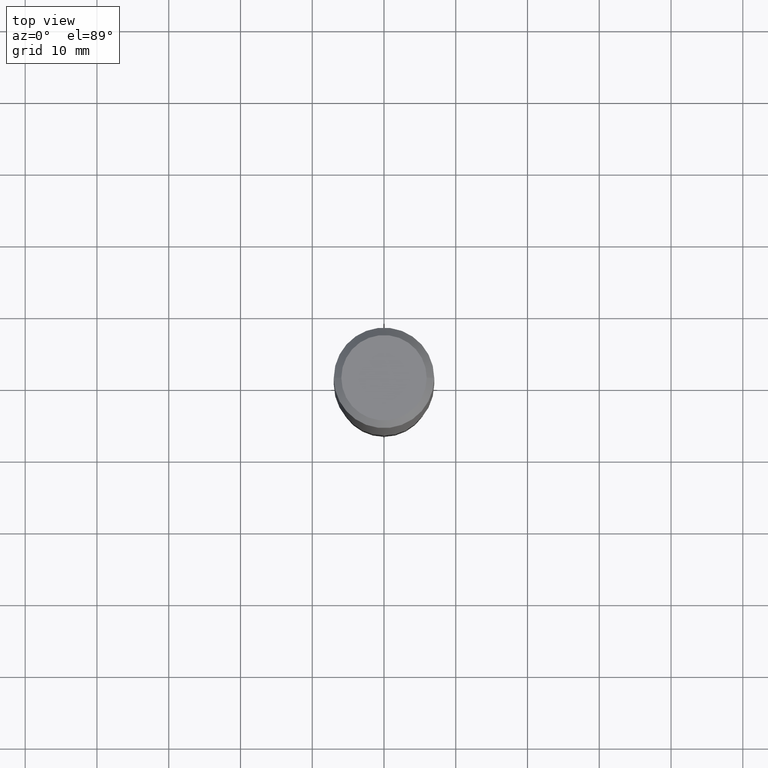
[diagram: clean part render]
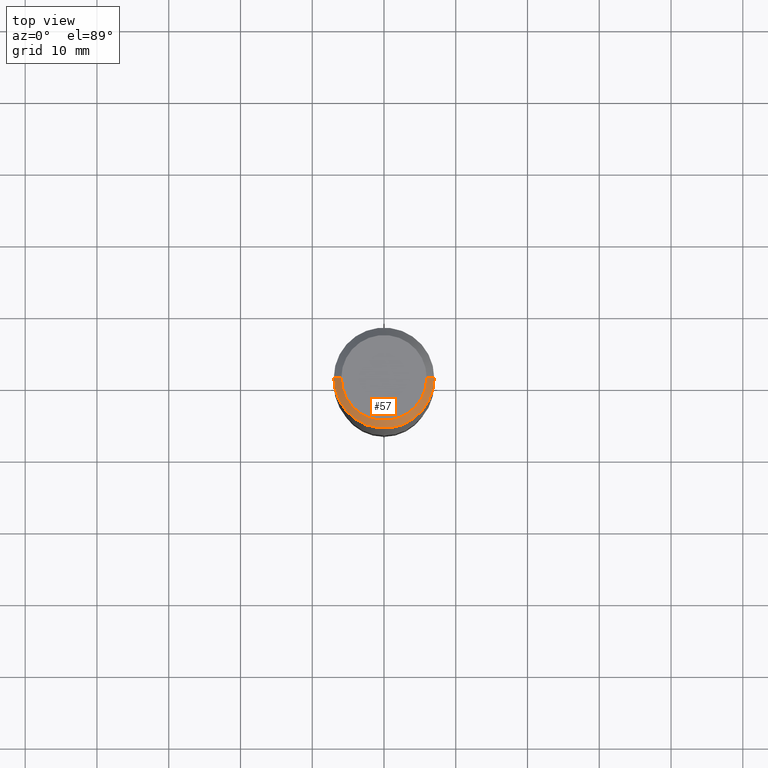
[diagram: same view with one face highlighted and labeled with its STEP entity id]
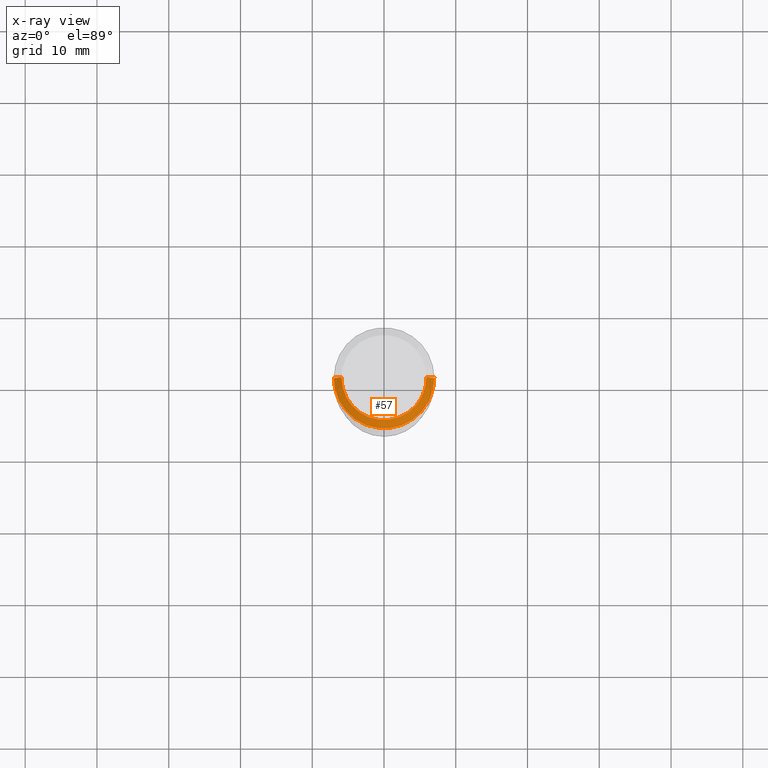
[diagram: x-ray of the same camera — body ghosted, the highlighted face saturated]
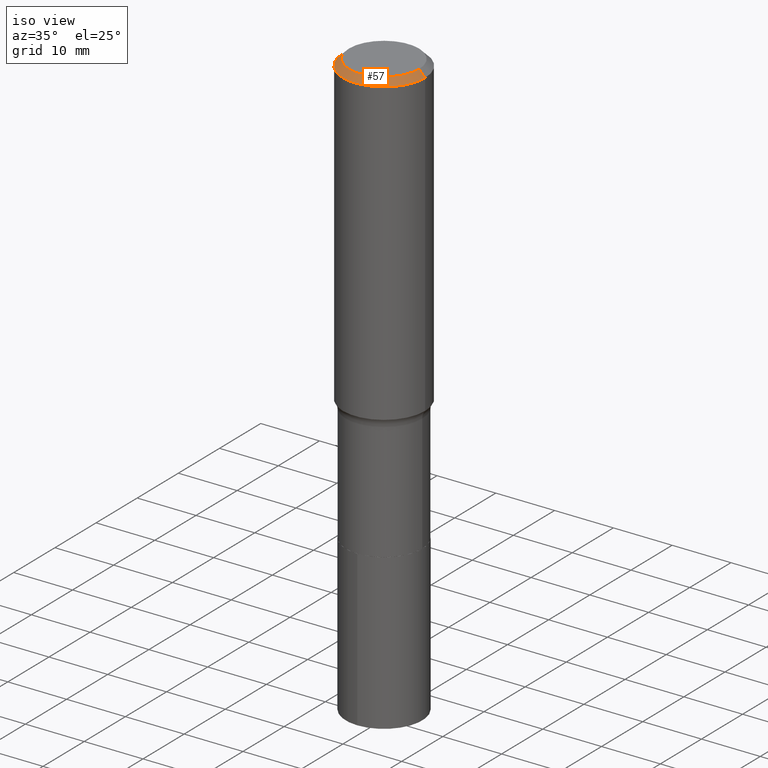
[diagram: same view with one face highlighted and labeled with its STEP entity id]
A machine part, top view. The second image highlights one B-rep face of the part: STEP entity #57.
The next image is the same camera in x-ray: the body ghosted, the highlighted face saturated — about 0% of this face is hidden behind the body in this view.
A second angle (iso view) of the same face is appended — the face is thin or edge-on in the first view.
In plain terms, the highlighted conical surface has half-angle 45 deg.
Its self-contained STEP definition (entity closure, byte-faithful):
#14 = CARTESIAN_POINT ( 'NONE',  ( -0.2756000000000000116, -1.705996447411659768E-15, -0.04134000000000027930 ) ) ;
#35 = ORIENTED_EDGE ( 'NONE', *, *, #92, .F. ) ;
#57 = ADVANCED_FACE ( 'NONE', ( #86 ), #186, .T. ) ;
#59 = LINE ( 'NONE', #456, #254 ) ;
#86 = FACE_OUTER_BOUND ( 'NONE', #396, .T. ) ;
#92 = EDGE_CURVE ( 'NONE', #402, #203, #409, .T. ) ;
#122 = CARTESIAN_POINT ( 'NONE',  ( 1.010956804476942398E-30, -1.443378385477766056E-16, -0.04134000000000027930 ) ) ;
#125 = DIRECTION ( 'NONE',  ( 2.445468806185136597E-29, -3.491481338843145583E-15, -1.000000000000000000 ) ) ;
#135 = CARTESIAN_POINT ( 'NONE',  ( 0.2342600000000000238, -1.821115673845785155E-15, 4.101342130356573868E-18 ) ) ;
#144 = ORIENTED_EDGE ( 'NONE', *, *, #437, .F. ) ;
#164 = DIRECTION ( 'NONE',  ( -1.000000000000000000, 6.982962677686267499E-15, 0.000000000000000000 ) ) ;
#169 = CARTESIAN_POINT ( 'NONE',  ( 0.2756000000000000116, -2.035091086733610886E-15, -0.04134000000000027930 ) ) ;
#181 = EDGE_CURVE ( 'NONE', #402, #265, #59, .T. ) ;
#186 = CONICAL_SURFACE ( 'NONE', #450, 0.2756000000000000116, 0.7853981633974449483 ) ;
#191 = VERTEX_POINT ( 'NONE', #382 ) ;
#193 = DIRECTION ( 'NONE',  ( -2.445468806185136597E-29, 3.491481338843145583E-15, 1.000000000000000000 ) ) ;
#203 = VERTEX_POINT ( 'NONE', #135 ) ;
#216 = CIRCLE ( 'NONE', #356, 0.2756000000000000116 ) ;
#236 = DIRECTION ( 'NONE',  ( -0.7071067811865451302, 2.468850131082231817E-15, -0.7071067811865499042 ) ) ;
#240 = CARTESIAN_POINT ( 'NONE',  ( -0.2342600000000000238, 1.707997756148671759E-15, 4.101342130332794026E-18 ) ) ;
#254 = VECTOR ( 'NONE', #236, 39.37007874015748143 ) ;
#265 = VERTEX_POINT ( 'NONE', #14 ) ;
#272 = VECTOR ( 'NONE', #452, 39.37007874015748143 ) ;
#292 = EDGE_CURVE ( 'NONE', #265, #191, #216, .T. ) ;
#295 = DIRECTION ( 'NONE',  ( 1.000000000000000000, -6.982962677686267499E-15, 0.000000000000000000 ) ) ;
#301 = CARTESIAN_POINT ( 'NONE',  ( -1.002970424325033577E-46, 1.431975951230896486E-32, 4.101342130344485961E-18 ) ) ;
#305 = CARTESIAN_POINT ( 'NONE',  ( 1.010956804476942398E-30, -1.443378385477766056E-16, -0.04134000000000027930 ) ) ;
#324 = ORIENTED_EDGE ( 'NONE', *, *, #292, .T. ) ;
#325 = ORIENTED_EDGE ( 'NONE', *, *, #181, .T. ) ;
#341 = LINE ( 'NONE', #169, #272 ) ;
#356 = AXIS2_PLACEMENT_3D ( 'NONE', #122, #193, #295 ) ;
#375 = DIRECTION ( 'NONE',  ( 1.000000000000000000, -6.982962677686267499E-15, 4.876157962347795834E-29 ) ) ;
#378 = DIRECTION ( 'NONE',  ( -2.445468806185136597E-29, 3.491481338843145583E-15, 1.000000000000000000 ) ) ;
#382 = CARTESIAN_POINT ( 'NONE',  ( 0.2756000000000000116, -2.068842352518111732E-15, -0.04134000000000027930 ) ) ;
#396 = EDGE_LOOP ( 'NONE', ( #144, #35, #325, #324 ) ) ;
#402 = VERTEX_POINT ( 'NONE', #240 ) ;
#409 = CIRCLE ( 'NONE', #428, 0.2342600000000000238 ) ;
#428 = AXIS2_PLACEMENT_3D ( 'NONE', #301, #378, #375 ) ;
#437 = EDGE_CURVE ( 'NONE', #203, #191, #341, .T. ) ;
#450 = AXIS2_PLACEMENT_3D ( 'NONE', #305, #125, #164 ) ;
#452 = DIRECTION ( 'NONE',  ( 0.7071067811865451302, -7.319954787623248157E-15, -0.7071067811865499042 ) ) ;
#456 = CARTESIAN_POINT ( 'NONE',  ( -0.2756000000000000116, 1.780166675422558965E-15, -0.04134000000000027930 ) ) ;